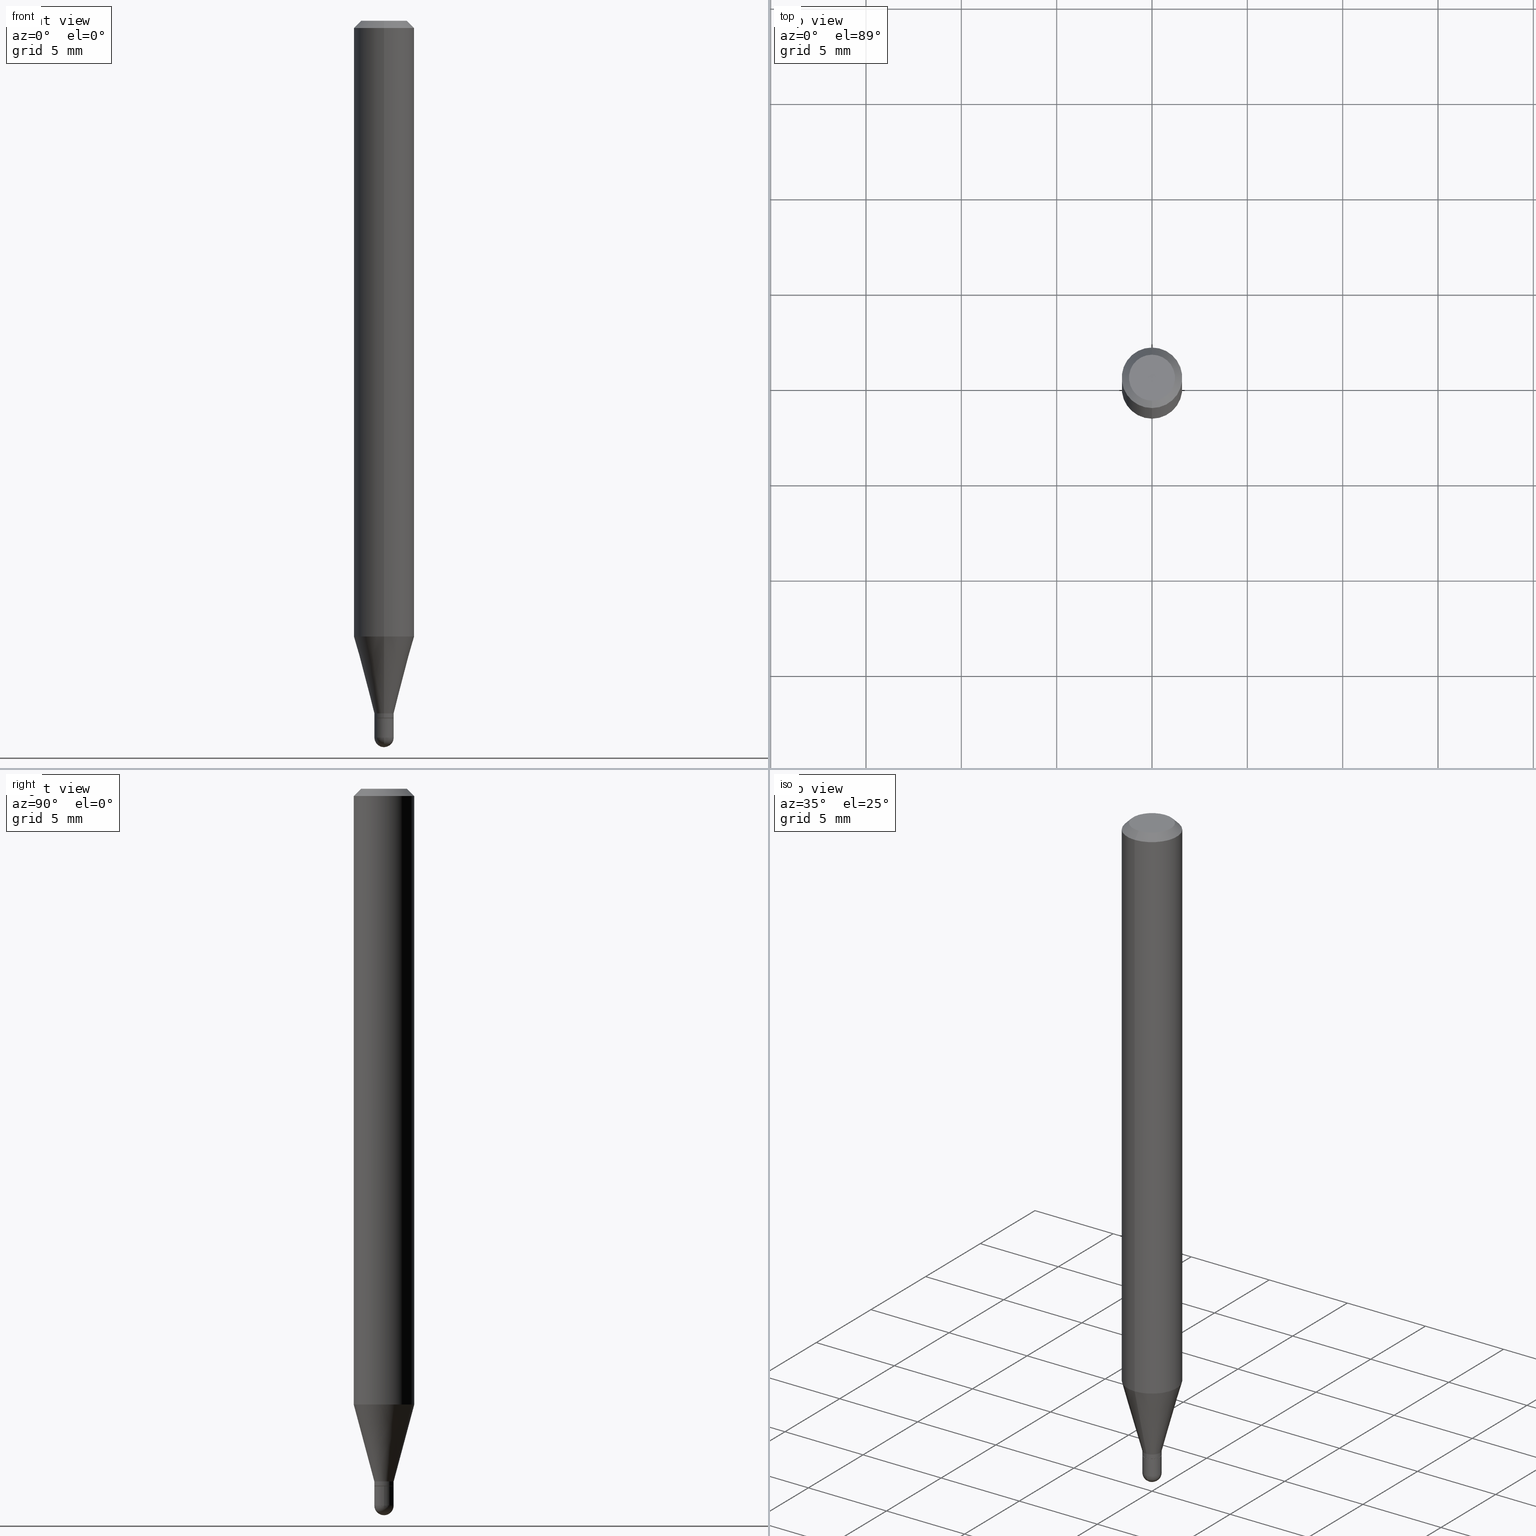
[diagram: canonical four-view strip — front | top / right | iso, engineering-drawing reading convention]
A machine part, canonical four-view strip (front | top / right | iso — engineering-drawing reading convention). The complete STEP part file that produces these views, byte-faithful:
ISO-10303-21;
HEADER;
FILE_DESCRIPTION (( 'STEP AP203' ),
    '1' );
FILE_NAME ('00775.STEP',
    '2024-03-07T18:18:02',
    ( '' ),
    ( '' ),
    'SwSTEP 2.0',
    'SolidWorks 2023',
    '' );
FILE_SCHEMA (( 'CONFIG_CONTROL_DESIGN' ));
ENDSEC;

DATA;
#1 = APPROVAL_ROLE ( '' ) ;
#2 = DIRECTION ( 'NONE',  ( -2.445468806185136597E-29, 3.491481338843145583E-15, 1.000000000000000000 ) ) ;
#3 = ADVANCED_FACE ( 'NONE', ( #186 ), #29, .T. ) ;
#4 = APPROVAL_ROLE ( '' ) ;
#5 = CARTESIAN_POINT ( 'NONE',  ( 3.617583500575643027E-29, -5.169841675086150023E-15, -1.479999999999999982 ) ) ;
#6 = CIRCLE ( 'NONE', #316, 0.01999999999999992409 ) ;
#7 = CALENDAR_DATE ( 2024, 7, 3 ) ;
#8 = CARTESIAN_POINT ( 'NONE',  ( 3.316907271900976096E-16, 0.04749999999999999362, -1.702750375905685625E-16 ) ) ;
#9 = APPROVAL ( #476, 'UNSPECIFIED' ) ;
#10 = DIRECTION ( 'NONE',  ( -4.851104656540964275E-15, -0.7071067811865500152, -0.7071067811865450192 ) ) ;
#11 = CC_DESIGN_PERSON_AND_ORGANIZATION_ASSIGNMENT ( #396, #470, ( #89 ) ) ;
#12 = CARTESIAN_POINT ( 'NONE',  ( 3.619293833154002365E-29, -5.167392381487854879E-15, -1.479999999999999982 ) ) ;
#13 = ORIENTED_EDGE ( 'NONE', *, *, #154, .F. ) ;
#14 = CIRCLE ( 'NONE', #508, 0.01999999999999992062 ) ;
#15 = CARTESIAN_POINT ( 'NONE',  ( 4.440892098500934804E-16, 0.06249999999999554523, -1.271387840678323444 ) ) ;
#16 = ORIENTED_EDGE ( 'NONE', *, *, #298, .F. ) ;
#17 = FACE_OUTER_BOUND ( 'NONE', #70, .T. ) ;
#18 = EDGE_CURVE ( 'NONE', #66, #390, #461, .T. ) ;
#19 = ORIENTED_EDGE ( 'NONE', *, *, #406, .T. ) ;
#20 = DIRECTION ( 'NONE',  ( -2.445483089663186682E-29, 3.491460884089612684E-15, 1.000000000000000000 ) ) ;
#21 = ORIENTED_EDGE ( 'NONE', *, *, #320, .F. ) ;
#22 = CIRCLE ( 'NONE', #472, 0.02000000000000000389 ) ;
#23 = CARTESIAN_POINT ( 'NONE',  ( 3.521495649114989180E-29, -5.027703673089042990E-15, -1.440000000000000169 ) ) ;
#24 = EDGE_LOOP ( 'NONE', ( #260, #34, #190, #54 ) ) ;
#25 = DIRECTION ( 'NONE',  ( -2.445483089663186682E-29, 3.491460884089612684E-15, 1.000000000000000000 ) ) ;
#26 = CARTESIAN_POINT ( 'NONE',  ( 0.000000000000000000, 0.000000000000000000, 0.000000000000000000 ) ) ;
#27 = CC_DESIGN_PERSON_AND_ORGANIZATION_ASSIGNMENT ( #85, #354, ( #230 ) ) ;
#28 = DIRECTION ( 'NONE',  ( -2.445483089663186682E-29, 3.491460884089612684E-15, 1.000000000000000000 ) ) ;
#29 = CYLINDRICAL_SURFACE ( 'NONE', #373, 0.02000000000000000042 ) ;
#30 = AXIS2_PLACEMENT_3D ( 'NONE', #364, #82, #239 ) ;
#31 = DIRECTION ( 'NONE',  ( -2.445483089663186682E-29, 3.491460884089612684E-15, 1.000000000000000000 ) ) ;
#32 = AXIS2_PLACEMENT_3D ( 'NONE', #300, #507, #426 ) ;
#33 = VERTEX_POINT ( 'NONE', #267 ) ;
#34 = ORIENTED_EDGE ( 'NONE', *, *, #395, .F. ) ;
#35 = ADVANCED_FACE ( 'NONE', ( #459 ), #350, .T. ) ;
#36 = FACE_OUTER_BOUND ( 'NONE', #134, .T. ) ;
#37 = ORIENTED_EDGE ( 'NONE', *, *, #504, .T. ) ;
#38 = APPROVAL_DATE_TIME ( #435, #9 ) ;
#39 = CONICAL_SURFACE ( 'NONE', #226, 0.06250000000000000000, 0.7853981633974483900 ) ;
#40 = LINE ( 'NONE', #284, #432 ) ;
#41 = EDGE_CURVE ( 'NONE', #132, #66, #305, .T. ) ;
#42 = CALENDAR_DATE ( 2024, 7, 3 ) ;
#43 = CARTESIAN_POINT ( 'NONE',  ( -4.364351673553912750E-16, -0.06250000000000005551, -0.01499999999999979128 ) ) ;
#44 = COORDINATED_UNIVERSAL_TIME_OFFSET ( 5, 0, .BEHIND. ) ;
#45 = DIRECTION ( 'NONE',  ( -1.000000000000000000, 6.982962677686265922E-15, -4.883557194083112340E-29 ) ) ;
#46 = DIRECTION ( 'NONE',  ( -6.982962677686266711E-15, -1.000000000000000000, 3.491460884089612684E-15 ) ) ;
#47 = AXIS2_PLACEMENT_3D ( 'NONE', #5, #125, #278 ) ;
#48 = ADVANCED_FACE ( 'NONE', ( #269 ), #455, .T. ) ;
#49 = PERSON_AND_ORGANIZATION ( #363, #509 ) ;
#50 = CARTESIAN_POINT ( 'NONE',  ( 4.440892098500938748E-16, 0.06249999999999995143, -0.01500000000000022669 ) ) ;
#51 = EDGE_CURVE ( 'NONE', #175, #66, #14, .T. ) ;
#52 = DIRECTION ( 'NONE',  ( -2.445483089663186682E-29, 3.491460884089612684E-15, 1.000000000000000000 ) ) ;
#53 = DIRECTION ( 'NONE',  ( 6.982962677686265922E-15, 1.000000000000000000, 0.000000000000000000 ) ) ;
#54 = ORIENTED_EDGE ( 'NONE', *, *, #320, .T. ) ;
#55 = AXIS2_PLACEMENT_3D ( 'NONE', #12, #133, #331 ) ;
#56 = CARTESIAN_POINT ( 'NONE',  ( 3.667348042988525507E-29, -5.238446655063865749E-15, -1.500000000000000222 ) ) ;
#57 = ORIENTED_EDGE ( 'NONE', *, *, #312, .T. ) ;
#58 = FACE_OUTER_BOUND ( 'NONE', #228, .T. ) ;
#59 = ORIENTED_EDGE ( 'NONE', *, *, #462, .T. ) ;
#60 = ADVANCED_BREP_SHAPE_REPRESENTATION ( '00775', ( #279, #437, #235 ), #122 ) ;
#61 = CARTESIAN_POINT ( 'NONE',  ( 3.617583500575643027E-29, -5.169841675086150023E-15, -1.479999999999999982 ) ) ;
#62 = ORIENTED_EDGE ( 'NONE', *, *, #67, .F. ) ;
#63 = CLOSED_SHELL ( 'NONE', ( #196, #158, #102, #497, #467, #429, #451, #35, #138, #353, #48, #489 ) ) ;
#64 = AXIS2_PLACEMENT_3D ( 'NONE', #511, #123, #271 ) ;
#65 = APPROVAL_PERSON_ORGANIZATION ( #275, #9, #87 ) ;
#66 = VERTEX_POINT ( 'NONE', #192 ) ;
#67 = EDGE_CURVE ( 'NONE', #390, #173, #347, .T. ) ;
#68 = CARTESIAN_POINT ( 'NONE',  ( 3.497040818218357490E-29, -4.992789064248145932E-15, -1.429999999999999938 ) ) ;
#69 = EDGE_LOOP ( 'NONE', ( #413, #422, #185, #272 ) ) ;
#70 = EDGE_LOOP ( 'NONE', ( #243, #57 ) ) ;
#71 = CIRCLE ( 'NONE', #129, 0.02000000000000000042 ) ;
#72 = DIRECTION ( 'NONE',  ( -6.982962677686265133E-15, -1.000000000000000000, 3.491460884089612289E-15 ) ) ;
#73 = AXIS2_PLACEMENT_3D ( 'NONE', #346, #224, #72 ) ;
#74 = ADVANCED_FACE ( 'NONE', ( #349 ), #309, .T. ) ;
#75 = EDGE_LOOP ( 'NONE', ( #294, #296, #493, #214 ) ) ;
#76 = DIRECTION ( 'NONE',  ( 0.000000000000000000, 0.000000000000000000, 1.000000000000000000 ) ) ;
#77 = VERTEX_POINT ( 'NONE', #156 ) ;
#78 = VERTEX_POINT ( 'NONE', #43 ) ;
#79 = EDGE_CURVE ( 'NONE', #377, #78, #242, .T. ) ;
#80 = APPROVAL_DATE_TIME ( #163, #104 ) ;
#81 = VECTOR ( 'NONE', #10, 39.37007874015748143 ) ;
#82 = DIRECTION ( 'NONE',  ( -2.445468806185136597E-29, 3.491481338843145583E-15, 1.000000000000000000 ) ) ;
#83 = EDGE_LOOP ( 'NONE', ( #288, #254, #299, #13 ) ) ;
#84 = COORDINATED_UNIVERSAL_TIME_OFFSET ( 5, 0, .BEHIND. ) ;
#85 = PERSON_AND_ORGANIZATION ( #363, #509 ) ;
#86 = DIRECTION ( 'NONE',  ( -4.937700262164674260E-15, -0.7071067811865632269, 0.7071067811865319186 ) ) ;
#87 = APPROVAL_ROLE ( '' ) ;
#88 = CARTESIAN_POINT ( 'NONE',  ( -1.396592535536897664E-16, -0.02000000000000491315, -1.429999999999999938 ) ) ;
#89 = PRODUCT_DEFINITION ( 'UNKNOWN', '', #250, #317 ) ;
#90 = VECTOR ( 'NONE', #485, 39.37007874015748143 ) ;
#91 = AXIS2_PLACEMENT_3D ( 'NONE', #108, #421, #227 ) ;
#92 = CARTESIAN_POINT ( 'NONE',  ( 1.396592535537616514E-16, 0.01999999999999485176, -1.479999999999999982 ) ) ;
#93 = LINE ( 'NONE', #452, #257 ) ;
#94 = ORIENTED_EDGE ( 'NONE', *, *, #504, .F. ) ;
#95 = EDGE_CURVE ( 'NONE', #447, #261, #499, .T. ) ;
#96 = DIRECTION ( 'NONE',  ( -2.445468806185136877E-29, 3.491481338843145188E-15, 1.000000000000000000 ) ) ;
#97 = VERTEX_POINT ( 'NONE', #167 ) ;
#98 = CIRCLE ( 'NONE', #384, 0.04749999999999999362 ) ;
#99 = DIRECTION ( 'NONE',  ( -6.982962677686265922E-15, -1.000000000000000000, 3.483106191921935554E-15 ) ) ;
#100 = ORIENTED_EDGE ( 'NONE', *, *, #301, .T. ) ;
#101 = DIRECTION ( 'NONE',  ( -2.445483089663186682E-29, 3.491460884089612684E-15, 1.000000000000000000 ) ) ;
#102 = ADVANCED_FACE ( 'NONE', ( #164 ), #39, .T. ) ;
#103 = ORIENTED_EDGE ( 'NONE', *, *, #285, .T. ) ;
#104 = APPROVAL ( #474, 'UNSPECIFIED' ) ;
#105 = EDGE_LOOP ( 'NONE', ( #488, #366, #416, #94 ) ) ;
#106 = AXIS2_PLACEMENT_3D ( 'NONE', #8, #438, #403 ) ;
#107 = CONICAL_SURFACE ( 'NONE', #241, 0.01999999999999992062, 0.2617993877991506846 ) ;
#108 = CARTESIAN_POINT ( 'NONE',  ( 3.497040818218357490E-29, -4.992789064248145932E-15, -1.429999999999999938 ) ) ;
#109 = DIRECTION ( 'NONE',  ( 2.445483089663186682E-29, -3.491460884089612684E-15, -1.000000000000000000 ) ) ;
#110 = CARTESIAN_POINT ( 'NONE',  ( 3.520272907570157456E-29, -5.025957942646998808E-15, -1.439500000000000224 ) ) ;
#111 = CARTESIAN_POINT ( 'NONE',  ( 1.421085471520194731E-16, 0.01999999999999992409, -6.982921768179198299E-17 ) ) ;
#112 = EDGE_CURVE ( 'NONE', #212, #132, #324, .T. ) ;
#113 = DIRECTION ( 'NONE',  ( -6.982962677686265133E-15, -1.000000000000000000, 0.000000000000000000 ) ) ;
#114 = CARTESIAN_POINT ( 'NONE',  ( 3.668224634494782440E-31, -5.237191326134422452E-17, -0.01500000000000000812 ) ) ;
#115 =( LENGTH_UNIT ( ) NAMED_UNIT ( * ) SI_UNIT ( $, .METRE. ) );
#116 = DIRECTION ( 'NONE',  ( -2.445483089663186682E-29, 3.491460884089612684E-15, 1.000000000000000000 ) ) ;
#117 = ORIENTED_EDGE ( 'NONE', *, *, #41, .T. ) ;
#118 = PLANE ( 'NONE',  #106 ) ;
#119 = EDGE_CURVE ( 'NONE', #327, #78, #200, .T. ) ;
#120 = APPROVAL_DATE_TIME ( #233, #415 ) ;
#121 = AXIS2_PLACEMENT_3D ( 'NONE', #23, #101, #130 ) ;
#122 =( GEOMETRIC_REPRESENTATION_CONTEXT ( 3 ) GLOBAL_UNCERTAINTY_ASSIGNED_CONTEXT ( ( #286 ) ) GLOBAL_UNIT_ASSIGNED_CONTEXT ( ( #387, #348, #191 ) ) REPRESENTATION_CONTEXT ( 'NONE', 'WORKASPACE' ) );
#123 = DIRECTION ( 'NONE',  ( -2.445483089663186682E-29, 3.491460884089612684E-15, 1.000000000000000000 ) ) ;
#124 = COORDINATED_UNIVERSAL_TIME_OFFSET ( 5, 0, .BEHIND. ) ;
#125 = DIRECTION ( 'NONE',  ( -1.000000000000000000, 6.982962677686265922E-15, -4.883557194083112340E-29 ) ) ;
#126 = APPROVAL_STATUS ( 'not_yet_approved' ) ;
#127 = DIRECTION ( 'NONE',  ( 6.982962677686265922E-15, 1.000000000000000000, -3.483106191921935554E-15 ) ) ;
#128 = DIRECTION ( 'NONE',  ( 5.024295867788190974E-15, 0.7071067811865681119, 0.7071067811865270336 ) ) ;
#129 = AXIS2_PLACEMENT_3D ( 'NONE', #253, #414, #246 ) ;
#130 = DIRECTION ( 'NONE',  ( -6.982962677686264344E-15, -1.000000000000000000, 0.000000000000000000 ) ) ;
#131 = EDGE_CURVE ( 'NONE', #78, #173, #146, .T. ) ;
#132 = VERTEX_POINT ( 'NONE', #319 ) ;
#133 = DIRECTION ( 'NONE',  ( -2.445468806185136597E-29, 3.491481338843145583E-15, 1.000000000000000000 ) ) ;
#134 = EDGE_LOOP ( 'NONE', ( #152, #370, #372, #445, #330 ) ) ;
#135 = CARTESIAN_POINT ( 'NONE',  ( 3.109157464782232884E-29, -4.439000914235523162E-15, -1.271387840678323222 ) ) ;
#136 = EDGE_LOOP ( 'NONE', ( #143, #100, #247, #498 ) ) ;
#137 = CIRCLE ( 'NONE', #121, 0.01949999999999999997 ) ;
#138 = ADVANCED_FACE ( 'NONE', ( #399 ), #118, .F. ) ;
#139 = DIRECTION ( 'NONE',  ( -2.445468806185136877E-29, 3.491481338843145188E-15, 1.000000000000000000 ) ) ;
#140 = EDGE_LOOP ( 'NONE', ( #453, #418, #303, #486 ) ) ;
#141 = EDGE_CURVE ( 'NONE', #306, #225, #40, .T. ) ;
#142 = DIRECTION ( 'NONE',  ( -2.445483089663186682E-29, 3.491460884089612684E-15, 1.000000000000000000 ) ) ;
#143 = ORIENTED_EDGE ( 'NONE', *, *, #112, .F. ) ;
#144 = FACE_OUTER_BOUND ( 'NONE', #468, .T. ) ;
#145 = EDGE_LOOP ( 'NONE', ( #332, #223, #454, #16, #419 ) ) ;
#146 = CIRCLE ( 'NONE', #64, 0.06250000000000000000 ) ;
#147 = CC_DESIGN_APPROVAL ( #415, ( #250 ) ) ;
#148 = DIRECTION ( 'NONE',  ( 6.982962677686265922E-15, 1.000000000000000000, -3.483106191921935554E-15 ) ) ;
#149 = DIRECTION ( 'NONE',  ( -2.445483089663186682E-29, 3.491460884089612684E-15, 1.000000000000000000 ) ) ;
#150 = CARTESIAN_POINT ( 'NONE',  ( 3.497040818218357490E-29, -4.992789064248145932E-15, -1.429999999999999938 ) ) ;
#151 = DIRECTION ( 'NONE',  ( -2.445483089663186682E-29, 3.491460884089612684E-15, 1.000000000000000000 ) ) ;
#152 = ORIENTED_EDGE ( 'NONE', *, *, #291, .F. ) ;
#153 = CONICAL_SURFACE ( 'NONE', #197, 0.01949999999999999997, 0.7853981633974739252 ) ;
#154 = EDGE_CURVE ( 'NONE', #382, #97, #211, .T. ) ;
#155 = CYLINDRICAL_SURFACE ( 'NONE', #220, 0.06250000000000000000 ) ;
#156 = CARTESIAN_POINT ( 'NONE',  ( -1.421085471519839497E-16, -0.02000000000000519071, -1.479999999999999982 ) ) ;
#157 = DATE_TIME_ROLE ( 'classification_date' ) ;
#158 = ADVANCED_FACE ( 'NONE', ( #475 ), #153, .T. ) ;
#159 = CARTESIAN_POINT ( 'NONE',  ( 0.000000000000000000, 0.000000000000000000, 0.000000000000000000 ) ) ;
#160 = APPLICATION_CONTEXT ( 'configuration controlled 3d designs of mechanical parts and assemblies' ) ;
#161 = COORDINATED_UNIVERSAL_TIME_OFFSET ( 5, 0, .BEHIND. ) ;
#162 = DIRECTION ( 'NONE',  ( -2.445483089663186682E-29, 3.491460884089612684E-15, 1.000000000000000000 ) ) ;
#163 = DATE_AND_TIME ( #7, #440 ) ;
#164 = FACE_OUTER_BOUND ( 'NONE', #75, .T. ) ;
#165 = SECURITY_CLASSIFICATION_LEVEL ( 'unclassified' ) ;
#166 = CARTESIAN_POINT ( 'NONE',  ( 4.364351673553919652E-16, 0.06249999999999995143, -0.01500000000000022669 ) ) ;
#167 = CARTESIAN_POINT ( 'NONE',  ( -0.02000000000000000389, -4.955454207558972206E-15, -1.479999999999999982 ) ) ;
#168 = CARTESIAN_POINT ( 'NONE',  ( 3.109157464782232884E-29, -4.439000914235523162E-15, -1.271387840678323222 ) ) ;
#169 = CIRCLE ( 'NONE', #240, 0.02000000000000003511 ) ;
#170 = AXIS2_PLACEMENT_3D ( 'NONE', #333, #449, #174 ) ;
#171 = EDGE_LOOP ( 'NONE', ( #195, #458, #218, #404 ) ) ;
#172 = DIRECTION ( 'NONE',  ( -2.445468806185136597E-29, 3.491481338843145583E-15, 1.000000000000000000 ) ) ;
#173 = VERTEX_POINT ( 'NONE', #50 ) ;
#174 = DIRECTION ( 'NONE',  ( -6.982962677686264344E-15, -1.000000000000000000, 0.000000000000000000 ) ) ;
#175 = VERTEX_POINT ( 'NONE', #88 ) ;
#176 = DIRECTION ( 'NONE',  ( -6.982962677686265133E-15, -1.000000000000000000, 0.000000000000000000 ) ) ;
#177 = CLOSED_SHELL ( 'NONE', ( #3, #74, #266, #207, #442 ) ) ;
#178 = ORIENTED_EDGE ( 'NONE', *, *, #301, .F. ) ;
#179 = VECTOR ( 'NONE', #96, 39.37007874015748143 ) ;
#180 = CIRCLE ( 'NONE', #308, 0.01999999999999992409 ) ;
#181 = EDGE_CURVE ( 'NONE', #377, #336, #490, .T. ) ;
#182 = CARTESIAN_POINT ( 'NONE',  ( -4.364351673553605587E-16, -0.06250000000000445477, -1.271387840678323000 ) ) ;
#183 = ORIENTED_EDGE ( 'NONE', *, *, #119, .T. ) ;
#184 = CYLINDRICAL_SURFACE ( 'NONE', #457, 0.06250000000000000000 ) ;
#185 = ORIENTED_EDGE ( 'NONE', *, *, #462, .F. ) ;
#186 = FACE_OUTER_BOUND ( 'NONE', #145, .T. ) ;
#187 = VECTOR ( 'NONE', #128, 39.37007874015748143 ) ;
#188 = SECURITY_CLASSIFICATION ( '', '', #165 ) ;
#189 = DIRECTION ( 'NONE',  ( -6.982962677686265922E-15, -1.000000000000000000, 3.491460884089612684E-15 ) ) ;
#190 = ORIENTED_EDGE ( 'NONE', *, *, #209, .T. ) ;
#191 =( NAMED_UNIT ( * ) SI_UNIT ( $, .STERADIAN. ) SOLID_ANGLE_UNIT ( ) );
#192 = CARTESIAN_POINT ( 'NONE',  ( 2.930988785010741768E-16, 0.01999999999999492462, -1.429999999999999938 ) ) ;
#193 = CC_DESIGN_DATE_AND_TIME_ASSIGNMENT ( #433, #157, ( #188 ) ) ;
#194 = DIRECTION ( 'NONE',  ( -6.982962677686265133E-15, -1.000000000000000000, 0.000000000000000000 ) ) ;
#195 = ORIENTED_EDGE ( 'NONE', *, *, #329, .T. ) ;
#196 = ADVANCED_FACE ( 'NONE', ( #199 ), #205, .T. ) ;
#197 = AXIS2_PLACEMENT_3D ( 'NONE', #441, #397, #234 ) ;
#198 = PERSON_AND_ORGANIZATION ( #363, #509 ) ;
#199 = FACE_OUTER_BOUND ( 'NONE', #484, .T. ) ;
#200 = LINE ( 'NONE', #206, #204 ) ;
#201 = APPLICATION_PROTOCOL_DEFINITION ( 'international standard', 'config_control_design', 1994, #443 ) ;
#202 = SPHERICAL_SURFACE ( 'NONE', #47, 0.02000000000000003511 ) ;
#203 = EDGE_CURVE ( 'NONE', #97, #77, #439, .T. ) ;
#204 = VECTOR ( 'NONE', #162, 39.37007874015748143 ) ;
#205 = CYLINDRICAL_SURFACE ( 'NONE', #342, 0.01999999999999992409 ) ;
#206 = CARTESIAN_POINT ( 'NONE',  ( -4.364351673553916201E-16, -0.06250000000000000000, 2.182163052556007927E-16 ) ) ;
#207 = ADVANCED_FACE ( 'NONE', ( #434 ), #202, .T. ) ;
#208 = DIRECTION ( 'NONE',  ( -2.445483089663186682E-29, 3.491460884089612684E-15, 1.000000000000000000 ) ) ;
#209 = EDGE_CURVE ( 'NONE', #336, #173, #238, .T. ) ;
#210 = FACE_OUTER_BOUND ( 'NONE', #251, .T. ) ;
#211 = CIRCLE ( 'NONE', #30, 0.02000000000000000389 ) ;
#212 = VERTEX_POINT ( 'NONE', #478 ) ;
#213 = CARTESIAN_POINT ( 'NONE',  ( -1.396592535536897664E-16, -0.02000000000000491315, -1.429999999999999938 ) ) ;
#214 = ORIENTED_EDGE ( 'NONE', *, *, #209, .F. ) ;
#215 = CARTESIAN_POINT ( 'NONE',  ( 3.497040818218357490E-29, -4.992789064248145932E-15, -1.429999999999999938 ) ) ;
#216 = EDGE_LOOP ( 'NONE', ( #221, #231 ) ) ;
#217 = CARTESIAN_POINT ( 'NONE',  ( -3.773273898774340269E-16, -0.04749999999999999362, 1.569831008016326844E-16 ) ) ;
#218 = ORIENTED_EDGE ( 'NONE', *, *, #131, .F. ) ;
#219 = AXIS2_PLACEMENT_3D ( 'NONE', #503, #505, #428 ) ;
#220 = AXIS2_PLACEMENT_3D ( 'NONE', #456, #28, #460 ) ;
#221 = ORIENTED_EDGE ( 'NONE', *, *, #395, .T. ) ;
#222 = DIRECTION ( 'NONE',  ( -6.982962677686265133E-15, -1.000000000000000000, 0.000000000000000000 ) ) ;
#223 = ORIENTED_EDGE ( 'NONE', *, *, #291, .T. ) ;
#224 = DIRECTION ( 'NONE',  ( -2.445483089663186682E-29, 3.491460884089612684E-15, 1.000000000000000000 ) ) ;
#225 = VERTEX_POINT ( 'NONE', #281 ) ;
#226 = AXIS2_PLACEMENT_3D ( 'NONE', #431, #355, #127 ) ;
#227 = DIRECTION ( 'NONE',  ( -6.982962677686265133E-15, -1.000000000000000000, 0.000000000000000000 ) ) ;
#228 = EDGE_LOOP ( 'NONE', ( #411, #37, #19, #495 ) ) ;
#229 = CARTESIAN_POINT ( 'NONE',  ( 0.02000000000000000042, -5.167392381487856456E-15, -1.440000000000000169 ) ) ;
#230 = PRODUCT ( '00775', '00775', '', ( #255 ) ) ;
#231 = ORIENTED_EDGE ( 'NONE', *, *, #181, .T. ) ;
#232 = EDGE_CURVE ( 'NONE', #306, #212, #137, .T. ) ;
#233 = DATE_AND_TIME ( #42, #386 ) ;
#234 = DIRECTION ( 'NONE',  ( -6.982962677686264344E-15, -1.000000000000000000, 0.000000000000000000 ) ) ;
#235 = AXIS2_PLACEMENT_3D ( 'NONE', #502, #76, #379 ) ;
#236 = COORDINATED_UNIVERSAL_TIME_OFFSET ( 5, 0, .BEHIND. ) ;
#237 = CARTESIAN_POINT ( 'NONE',  ( 1.385558334732547143E-16, 0.01949999999999496927, -1.440000000000000169 ) ) ;
#238 = LINE ( 'NONE', #166, #481 ) ;
#239 = DIRECTION ( 'NONE',  ( 1.000000000000000000, -6.982962677686282488E-15, 0.000000000000000000 ) ) ;
#240 = AXIS2_PLACEMENT_3D ( 'NONE', #61, #248, #53 ) ;
#241 = AXIS2_PLACEMENT_3D ( 'NONE', #215, #20, #176 ) ;
#242 = LINE ( 'NONE', #480, #81 ) ;
#243 = ORIENTED_EDGE ( 'NONE', *, *, #95, .T. ) ;
#244 = CARTESIAN_POINT ( 'NONE',  ( 2.167013776414310302E-46, -3.093885158157417221E-32, -8.861291192623908455E-18 ) ) ;
#245 = CC_DESIGN_DATE_AND_TIME_ASSIGNMENT ( #313, #318, ( #89 ) ) ;
#246 = DIRECTION ( 'NONE',  ( 1.000000000000000000, -6.982962677686284065E-15, 0.000000000000000000 ) ) ;
#247 = ORIENTED_EDGE ( 'NONE', *, *, #141, .T. ) ;
#248 = DIRECTION ( 'NONE',  ( 1.000000000000000000, -6.982962677686265922E-15, 4.883557194083112340E-29 ) ) ;
#249 = AXIS2_PLACEMENT_3D ( 'NONE', #405, #52, #99 ) ;
#250 = PRODUCT_DEFINITION_FORMATION_WITH_SPECIFIED_SOURCE ( 'ANY', '', #230, .NOT_KNOWN. ) ;
#251 = EDGE_LOOP ( 'NONE', ( #501, #178 ) ) ;
#252 = DIRECTION ( 'NONE',  ( -6.982962677686265922E-15, -1.000000000000000000, 4.370956789862821150E-15 ) ) ;
#253 = CARTESIAN_POINT ( 'NONE',  ( 3.521475080906597305E-29, -5.027733127934130649E-15, -1.440000000000000169 ) ) ;
#254 = ORIENTED_EDGE ( 'NONE', *, *, #479, .T. ) ;
#255 = MECHANICAL_CONTEXT ( 'NONE', #160, 'mechanical' ) ;
#256 = ORIENTED_EDGE ( 'NONE', *, *, #378, .F. ) ;
#257 = VECTOR ( 'NONE', #139, 39.37007874015748143 ) ;
#258 = EDGE_CURVE ( 'NONE', #77, #33, #22, .T. ) ;
#259 = CC_DESIGN_APPROVAL ( #104, ( #89 ) ) ;
#260 = ORIENTED_EDGE ( 'NONE', *, *, #79, .F. ) ;
#261 = VERTEX_POINT ( 'NONE', #482 ) ;
#262 = DIRECTION ( 'NONE',  ( -1.000000000000000000, 7.105427357601001070E-15, -4.926315508542082329E-29 ) ) ;
#263 = DIRECTION ( 'NONE',  ( -2.445483089663186682E-29, 3.491460884089612684E-15, 1.000000000000000000 ) ) ;
#264 = AXIS2_PLACEMENT_3D ( 'NONE', #314, #391, #46 ) ;
#265 = APPLICATION_PROTOCOL_DEFINITION ( 'international standard', 'config_control_design', 1994, #160 ) ;
#266 = ADVANCED_FACE ( 'NONE', ( #17 ), #297, .F. ) ;
#267 = CARTESIAN_POINT ( 'NONE',  ( 0.02000000000000000389, -5.237222008264718177E-15, -1.479999999999999982 ) ) ;
#268 = PERSON_AND_ORGANIZATION_ROLE ( 'creator' ) ;
#269 = FACE_OUTER_BOUND ( 'NONE', #136, .T. ) ;
#270 = CALENDAR_DATE ( 2024, 7, 3 ) ;
#271 = DIRECTION ( 'NONE',  ( -6.982962677686265922E-15, -1.000000000000000000, 3.483106191921935554E-15 ) ) ;
#272 = ORIENTED_EDGE ( 'NONE', *, *, #141, .F. ) ;
#273 = AXIS2_PLACEMENT_3D ( 'NONE', #276, #45, #358 ) ;
#274 = AXIS2_PLACEMENT_3D ( 'NONE', #339, #262, #304 ) ;
#275 = PERSON_AND_ORGANIZATION ( #363, #509 ) ;
#276 = CARTESIAN_POINT ( 'NONE',  ( 3.617583500575643027E-29, -5.169841675086150023E-15, -1.479999999999999982 ) ) ;
#277 = PERSON_AND_ORGANIZATION_ROLE ( 'classification_officer' ) ;
#278 = DIRECTION ( 'NONE',  ( 6.982962677686265922E-15, 1.000000000000000000, 0.000000000000000000 ) ) ;
#279 = MANIFOLD_SOLID_BREP ( 'Body-Move/Copy2[1]', #177 ) ;
#280 = PERSON_AND_ORGANIZATION_ROLE ( 'design_supplier' ) ;
#281 = CARTESIAN_POINT ( 'NONE',  ( -1.396592535536900376E-16, -0.02000000000000502071, -1.439500000000000224 ) ) ;
#282 = VECTOR ( 'NONE', #345, 39.37007874015748143 ) ;
#283 = VECTOR ( 'NONE', #116, 39.37007874015748143 ) ;
#284 = CARTESIAN_POINT ( 'NONE',  ( -1.361677722148469565E-16, -0.01950000000000502720, -1.440000000000000169 ) ) ;
#285 = EDGE_CURVE ( 'NONE', #390, #327, #393, .T. ) ;
#286 = UNCERTAINTY_MEASURE_WITH_UNIT (LENGTH_MEASURE( 1.000000000000000082E-05 ), #387, 'distance_accuracy_value', 'NONE');
#287 = CARTESIAN_POINT ( 'NONE',  ( 1.396592535537605421E-16, 0.01999999999999497319, -1.440000000000000169 ) ) ;
#288 = ORIENTED_EDGE ( 'NONE', *, *, #338, .F. ) ;
#289 = PLANE ( 'NONE',  #315 ) ;
#290 = EDGE_LOOP ( 'NONE', ( #62, #103, #183, #21 ) ) ;
#291 = EDGE_CURVE ( 'NONE', #97, #261, #93, .T. ) ;
#292 = LINE ( 'NONE', #446, #179 ) ;
#293 = CIRCLE ( 'NONE', #170, 0.01949999999999999997 ) ;
#294 = ORIENTED_EDGE ( 'NONE', *, *, #181, .F. ) ;
#295 = DIRECTION ( 'NONE',  ( -1.000000000000000000, 6.982962677686265922E-15, -4.876176775795935793E-29 ) ) ;
#296 = ORIENTED_EDGE ( 'NONE', *, *, #79, .T. ) ;
#297 = PLANE ( 'NONE',  #448 ) ;
#298 = EDGE_CURVE ( 'NONE', #33, #447, #292, .T. ) ;
#299 = ORIENTED_EDGE ( 'NONE', *, *, #203, .F. ) ;
#300 = CARTESIAN_POINT ( 'NONE',  ( 0.000000000000000000, 0.000000000000000000, 0.000000000000000000 ) ) ;
#301 = EDGE_CURVE ( 'NONE', #212, #306, #293, .T. ) ;
#302 = DIRECTION ( 'NONE',  ( 1.839019923739603076E-15, 0.2588190451025253469, 0.9659258262890670910 ) ) ;
#303 = ORIENTED_EDGE ( 'NONE', *, *, #420, .F. ) ;
#304 = DIRECTION ( 'NONE',  ( -7.105427357601000281E-15, -1.000000000000000000, 0.000000000000000000 ) ) ;
#305 = LINE ( 'NONE', #111, #282 ) ;
#306 = VERTEX_POINT ( 'NONE', #337 ) ;
#307 = VECTOR ( 'NONE', #302, 39.37007874015748143 ) ;
#308 = AXIS2_PLACEMENT_3D ( 'NONE', #423, #151, #222 ) ;
#309 = SPHERICAL_SURFACE ( 'NONE', #273, 0.02000000000000003511 ) ;
#310 = PERSON_AND_ORGANIZATION ( #363, #509 ) ;
#311 = DIRECTION ( 'NONE',  ( -2.445483089663186682E-29, 3.491460884089612684E-15, 1.000000000000000000 ) ) ;
#312 = EDGE_CURVE ( 'NONE', #261, #447, #71, .T. ) ;
#313 = DATE_AND_TIME ( #398, #409 ) ;
#314 = CARTESIAN_POINT ( 'NONE',  ( 2.167013776414310302E-46, -3.093885158157417221E-32, -8.861291192623908455E-18 ) ) ;
#315 = AXIS2_PLACEMENT_3D ( 'NONE', #410, #326, #374 ) ;
#316 = AXIS2_PLACEMENT_3D ( 'NONE', #110, #25, #194 ) ;
#317 = DESIGN_CONTEXT ( 'detailed design', #443, 'design' ) ;
#318 = DATE_TIME_ROLE ( 'creation_date' ) ;
#319 = CARTESIAN_POINT ( 'NONE',  ( 1.421085471520541830E-16, 0.01999999999999482747, -1.439500000000000224 ) ) ;
#320 = EDGE_CURVE ( 'NONE', #173, #78, #464, .T. ) ;
#321 = PERSON_AND_ORGANIZATION ( #363, #509 ) ;
#322 = DIRECTION ( 'NONE',  ( 4.937700262164548042E-15, 0.7071067811865451302, -0.7071067811865499042 ) ) ;
#323 = CC_DESIGN_PERSON_AND_ORGANIZATION_ASSIGNMENT ( #310, #268, ( #250 ) ) ;
#324 = LINE ( 'NONE', #237, #187 ) ;
#325 = AXIS2_PLACEMENT_3D ( 'NONE', #114, #109, #148 ) ;
#326 = DIRECTION ( 'NONE',  ( -2.445483089663186401E-29, 3.491460884089612684E-15, 1.000000000000000000 ) ) ;
#327 = VERTEX_POINT ( 'NONE', #182 ) ;
#328 = LINE ( 'NONE', #213, #90 ) ;
#329 = EDGE_CURVE ( 'NONE', #327, #390, #359, .T. ) ;
#330 = ORIENTED_EDGE ( 'NONE', *, *, #312, .F. ) ;
#331 = DIRECTION ( 'NONE',  ( 1.000000000000000000, -6.982962677686282488E-15, 0.000000000000000000 ) ) ;
#332 = ORIENTED_EDGE ( 'NONE', *, *, #154, .T. ) ;
#333 = CARTESIAN_POINT ( 'NONE',  ( 3.521495649114989180E-29, -5.027703673089042990E-15, -1.440000000000000169 ) ) ;
#334 = AXIS2_PLACEMENT_3D ( 'NONE', #356, #436, #400 ) ;
#335 = CIRCLE ( 'NONE', #274, 0.02000000000000003511 ) ;
#336 = VERTEX_POINT ( 'NONE', #407 ) ;
#337 = CARTESIAN_POINT ( 'NONE',  ( -1.361677722148469565E-16, -0.01950000000000502720, -1.440000000000000169 ) ) ;
#338 = EDGE_CURVE ( 'NONE', #368, #382, #169, .T. ) ;
#339 = CARTESIAN_POINT ( 'NONE',  ( 3.617583500575643027E-29, -5.169841675086150023E-15, -1.479999999999999982 ) ) ;
#340 = ORIENTED_EDGE ( 'NONE', *, *, #329, .F. ) ;
#341 = LENGTH_MEASURE_WITH_UNIT ( LENGTH_MEASURE( 0.02539999999999999897 ), #115 );
#342 = AXIS2_PLACEMENT_3D ( 'NONE', #159, #311, #361 ) ;
#343 = DIRECTION ( 'NONE',  ( -2.445468806185136597E-29, 3.491481338843145583E-15, 1.000000000000000000 ) ) ;
#344 = CONICAL_SURFACE ( 'NONE', #401, 0.01999999999999992062, 0.2617993877991506846 ) ;
#345 = DIRECTION ( 'NONE',  ( -2.445483089663186682E-29, 3.491460884089612684E-15, 1.000000000000000000 ) ) ;
#346 = CARTESIAN_POINT ( 'NONE',  ( 0.000000000000000000, 0.000000000000000000, 0.000000000000000000 ) ) ;
#347 = LINE ( 'NONE', #465, #283 ) ;
#348 =( NAMED_UNIT ( * ) PLANE_ANGLE_UNIT ( ) SI_UNIT ( $, .RADIAN. ) );
#349 = FACE_OUTER_BOUND ( 'NONE', #83, .T. ) ;
#350 = CONICAL_SURFACE ( 'NONE', #325, 0.06250000000000000000, 0.7853981633974483900 ) ;
#351 = AXIS2_PLACEMENT_3D ( 'NONE', #135, #444, #252 ) ;
#352 = LOCAL_TIME ( 13, 18, 2.000000000000000000, #84 ) ;
#353 = ADVANCED_FACE ( 'NONE', ( #210 ), #289, .F. ) ;
#354 = PERSON_AND_ORGANIZATION_ROLE ( 'design_owner' ) ;
#355 = DIRECTION ( 'NONE',  ( 2.445483089663186682E-29, -3.491460884089612684E-15, -1.000000000000000000 ) ) ;
#356 = CARTESIAN_POINT ( 'NONE',  ( 3.521475080906597305E-29, -5.027733127934130649E-15, -1.440000000000000169 ) ) ;
#357 = SHAPE_DEFINITION_REPRESENTATION ( #512, #60 ) ;
#358 = DIRECTION ( 'NONE',  ( 6.982962677686265922E-15, 1.000000000000000000, 0.000000000000000000 ) ) ;
#359 = CIRCLE ( 'NONE', #424, 0.06250000000000000000 ) ;
#360 = LOCAL_TIME ( 13, 18, 2.000000000000000000, #236 ) ;
#361 = DIRECTION ( 'NONE',  ( -6.982962677686265133E-15, -1.000000000000000000, 3.491460884089612289E-15 ) ) ;
#362 = CC_DESIGN_PERSON_AND_ORGANIZATION_ASSIGNMENT ( #198, #280, ( #250 ) ) ;
#363 = PERSON ( 'UNSPECIFIED', 'UNSPECIFIED', 'UNSPECIFIED', ('UNSPECIFIED'), ('UNSPECIFIED'), ('UNSPECIFIED') ) ;
#364 = CARTESIAN_POINT ( 'NONE',  ( 3.619293833154002365E-29, -5.167392381487854879E-15, -1.479999999999999982 ) ) ;
#365 = DIRECTION ( 'NONE',  ( -2.445483089663186682E-29, 3.491460884089612684E-15, 1.000000000000000000 ) ) ;
#366 = ORIENTED_EDGE ( 'NONE', *, *, #483, .T. ) ;
#367 = LINE ( 'NONE', #494, #417 ) ;
#368 = VERTEX_POINT ( 'NONE', #56 ) ;
#369 = CARTESIAN_POINT ( 'NONE',  ( 3.619293833154002365E-29, -5.167392381487854879E-15, -1.479999999999999982 ) ) ;
#370 = ORIENTED_EDGE ( 'NONE', *, *, #203, .T. ) ;
#371 = DIRECTION ( 'NONE',  ( 2.438088387897960049E-29, -3.491481338843145188E-15, -1.000000000000000000 ) ) ;
#372 = ORIENTED_EDGE ( 'NONE', *, *, #258, .T. ) ;
#373 = AXIS2_PLACEMENT_3D ( 'NONE', #26, #343, #388 ) ;
#374 = DIRECTION ( 'NONE',  ( -6.982962677686265922E-15, -1.000000000000000000, 3.491460884089612684E-15 ) ) ;
#375 = CIRCLE ( 'NONE', #55, 0.02000000000000000389 ) ;
#376 = APPROVAL_PERSON_ORGANIZATION ( #402, #104, #4 ) ;
#377 = VERTEX_POINT ( 'NONE', #217 ) ;
#378 = EDGE_CURVE ( 'NONE', #225, #175, #367, .T. ) ;
#379 = DIRECTION ( 'NONE',  ( 1.000000000000000000, 0.000000000000000000, 0.000000000000000000 ) ) ;
#380 = ORIENTED_EDGE ( 'NONE', *, *, #51, .T. ) ;
#381 = CYLINDRICAL_SURFACE ( 'NONE', #73, 0.01999999999999992409 ) ;
#382 = VERTEX_POINT ( 'NONE', #92 ) ;
#383 = FACE_OUTER_BOUND ( 'NONE', #290, .T. ) ;
#384 = AXIS2_PLACEMENT_3D ( 'NONE', #244, #365, #412 ) ;
#385 = CARTESIAN_POINT ( 'NONE',  ( 1.421085471520544049E-16, 0.01999999999999492462, -1.429999999999999938 ) ) ;
#386 = LOCAL_TIME ( 13, 18, 2.000000000000000000, #161 ) ;
#387 =( CONVERSION_BASED_UNIT ( 'INCH', #341 ) LENGTH_UNIT ( ) NAMED_UNIT ( #477 ) );
#388 = DIRECTION ( 'NONE',  ( 1.000000000000000000, -6.982962677686265922E-15, 4.876176775795935793E-29 ) ) ;
#389 = CARTESIAN_POINT ( 'NONE',  ( 0.000000000000000000, 0.000000000000000000, 0.000000000000000000 ) ) ;
#390 = VERTEX_POINT ( 'NONE', #15 ) ;
#391 = DIRECTION ( 'NONE',  ( -2.445483089663186682E-29, 3.491460884089612684E-15, 1.000000000000000000 ) ) ;
#392 = AXIS2_PLACEMENT_3D ( 'NONE', #469, #2, #471 ) ;
#393 = CIRCLE ( 'NONE', #351, 0.06250000000000000000 ) ;
#394 = APPROVAL_PERSON_ORGANIZATION ( #49, #415, #1 ) ;
#395 = EDGE_CURVE ( 'NONE', #336, #377, #98, .T. ) ;
#396 = PERSON_AND_ORGANIZATION ( #363, #509 ) ;
#397 = DIRECTION ( 'NONE',  ( -2.445483089663186682E-29, 3.491460884089612684E-15, 1.000000000000000000 ) ) ;
#398 = CALENDAR_DATE ( 2024, 7, 3 ) ;
#399 = FACE_OUTER_BOUND ( 'NONE', #216, .T. ) ;
#400 = DIRECTION ( 'NONE',  ( 1.000000000000000000, -6.982962677686284065E-15, 0.000000000000000000 ) ) ;
#401 = AXIS2_PLACEMENT_3D ( 'NONE', #68, #149, #113 ) ;
#402 = PERSON_AND_ORGANIZATION ( #363, #509 ) ;
#403 = DIRECTION ( 'NONE',  ( 6.982962677686265922E-15, 1.000000000000000000, -3.491460884089612684E-15 ) ) ;
#404 = ORIENTED_EDGE ( 'NONE', *, *, #119, .F. ) ;
#405 = CARTESIAN_POINT ( 'NONE',  ( 3.668224634494782440E-31, -5.237191326134422452E-17, -0.01500000000000000812 ) ) ;
#406 = EDGE_CURVE ( 'NONE', #175, #327, #328, .T. ) ;
#407 = CARTESIAN_POINT ( 'NONE',  ( 3.840629472727447874E-16, 0.04749999999999999362, -1.747056831868805136E-16 ) ) ;
#408 = ORIENTED_EDGE ( 'NONE', *, *, #51, .F. ) ;
#409 = LOCAL_TIME ( 13, 18, 2.000000000000000000, #44 ) ;
#410 = CARTESIAN_POINT ( 'NONE',  ( 3.521495649114989180E-29, -5.027703673089042990E-15, -1.440000000000000169 ) ) ;
#411 = ORIENTED_EDGE ( 'NONE', *, *, #18, .F. ) ;
#412 = DIRECTION ( 'NONE',  ( -6.982962677686266711E-15, -1.000000000000000000, 3.491460884089612684E-15 ) ) ;
#413 = ORIENTED_EDGE ( 'NONE', *, *, #232, .T. ) ;
#414 = DIRECTION ( 'NONE',  ( -2.445468806185136597E-29, 3.491481338843145583E-15, 1.000000000000000000 ) ) ;
#415 = APPROVAL ( #126, 'UNSPECIFIED' ) ;
#416 = ORIENTED_EDGE ( 'NONE', *, *, #378, .T. ) ;
#417 = VECTOR ( 'NONE', #142, 39.37007874015748143 ) ;
#418 = ORIENTED_EDGE ( 'NONE', *, *, #338, .T. ) ;
#419 = ORIENTED_EDGE ( 'NONE', *, *, #420, .T. ) ;
#420 = EDGE_CURVE ( 'NONE', #33, #382, #375, .T. ) ;
#421 = DIRECTION ( 'NONE',  ( -2.445483089663186682E-29, 3.491460884089612684E-15, 1.000000000000000000 ) ) ;
#422 = ORIENTED_EDGE ( 'NONE', *, *, #112, .T. ) ;
#423 = CARTESIAN_POINT ( 'NONE',  ( 3.520272907570157456E-29, -5.025957942646998808E-15, -1.439500000000000224 ) ) ;
#424 = AXIS2_PLACEMENT_3D ( 'NONE', #168, #208, #492 ) ;
#425 = DIRECTION ( 'NONE',  ( -6.982962677686265133E-15, -1.000000000000000000, 0.000000000000000000 ) ) ;
#426 = DIRECTION ( 'NONE',  ( 1.000000000000000000, -6.982962677686265922E-15, 4.876176775795935793E-29 ) ) ;
#427 = ORIENTED_EDGE ( 'NONE', *, *, #406, .F. ) ;
#428 = DIRECTION ( 'NONE',  ( -6.982962677686264344E-15, -1.000000000000000000, 0.000000000000000000 ) ) ;
#429 = ADVANCED_FACE ( 'NONE', ( #58 ), #107, .T. ) ;
#430 = CALENDAR_DATE ( 2024, 7, 3 ) ;
#431 = CARTESIAN_POINT ( 'NONE',  ( 3.668224634494782440E-31, -5.237191326134422452E-17, -0.01500000000000000812 ) ) ;
#432 = VECTOR ( 'NONE', #86, 39.37007874015748143 ) ;
#433 = DATE_AND_TIME ( #430, #360 ) ;
#434 = FACE_OUTER_BOUND ( 'NONE', #140, .T. ) ;
#435 = DATE_AND_TIME ( #270, #352 ) ;
#436 = DIRECTION ( 'NONE',  ( -2.445468806185136597E-29, 3.491481338843145583E-15, 1.000000000000000000 ) ) ;
#437 = MANIFOLD_SOLID_BREP ( 'Body-Move/Copy2[2]', #63 ) ;
#438 = DIRECTION ( 'NONE',  ( 2.445483089663186401E-29, -3.491460884089612684E-15, -1.000000000000000000 ) ) ;
#439 = CIRCLE ( 'NONE', #392, 0.02000000000000000389 ) ;
#440 = LOCAL_TIME ( 13, 18, 2.000000000000000000, #124 ) ;
#441 = CARTESIAN_POINT ( 'NONE',  ( 3.521495649114989180E-29, -5.027703673089042990E-15, -1.440000000000000169 ) ) ;
#442 = ADVANCED_FACE ( 'NONE', ( #36 ), #463, .T. ) ;
#443 = APPLICATION_CONTEXT ( 'configuration controlled 3d designs of mechanical parts and assemblies' ) ;
#444 = DIRECTION ( 'NONE',  ( -2.445483089663186682E-29, 3.491460884089612684E-15, 1.000000000000000000 ) ) ;
#445 = ORIENTED_EDGE ( 'NONE', *, *, #298, .T. ) ;
#446 = CARTESIAN_POINT ( 'NONE',  ( 0.02000000000000000042, -1.396592535537253145E-16, 9.752353551591871936E-31 ) ) ;
#447 = VERTEX_POINT ( 'NONE', #229 ) ;
#448 = AXIS2_PLACEMENT_3D ( 'NONE', #287, #371, #295 ) ;
#449 = DIRECTION ( 'NONE',  ( -2.445483089663186682E-29, 3.491460884089612684E-15, 1.000000000000000000 ) ) ;
#450 = ORIENTED_EDGE ( 'NONE', *, *, #18, .T. ) ;
#451 = ADVANCED_FACE ( 'NONE', ( #383 ), #184, .T. ) ;
#452 = CARTESIAN_POINT ( 'NONE',  ( -0.02000000000000000042, 1.421085471520200401E-16, -9.837870180509812545E-31 ) ) ;
#453 = ORIENTED_EDGE ( 'NONE', *, *, #479, .F. ) ;
#454 = ORIENTED_EDGE ( 'NONE', *, *, #95, .F. ) ;
#455 = CONICAL_SURFACE ( 'NONE', #219, 0.01949999999999999997, 0.7853981633974739252 ) ;
#456 = CARTESIAN_POINT ( 'NONE',  ( 0.000000000000000000, 0.000000000000000000, 0.000000000000000000 ) ) ;
#457 = AXIS2_PLACEMENT_3D ( 'NONE', #389, #31, #189 ) ;
#458 = ORIENTED_EDGE ( 'NONE', *, *, #67, .T. ) ;
#459 = FACE_OUTER_BOUND ( 'NONE', #24, .T. ) ;
#460 = DIRECTION ( 'NONE',  ( -6.982962677686265922E-15, -1.000000000000000000, 3.491460884089612684E-15 ) ) ;
#461 = LINE ( 'NONE', #385, #307 ) ;
#462 = EDGE_CURVE ( 'NONE', #225, #132, #6, .T. ) ;
#463 = CYLINDRICAL_SURFACE ( 'NONE', #32, 0.02000000000000000042 ) ;
#464 = CIRCLE ( 'NONE', #249, 0.06250000000000000000 ) ;
#465 = CARTESIAN_POINT ( 'NONE',  ( 4.440892098500625669E-16, 0.06250000000000000000, -2.182163052556007927E-16 ) ) ;
#466 = CC_DESIGN_SECURITY_CLASSIFICATION ( #188, ( #250 ) ) ;
#467 = ADVANCED_FACE ( 'NONE', ( #144 ), #344, .T. ) ;
#468 = EDGE_LOOP ( 'NONE', ( #380, #450, #340, #427 ) ) ;
#469 = CARTESIAN_POINT ( 'NONE',  ( 3.619293833154002365E-29, -5.167392381487854879E-15, -1.479999999999999982 ) ) ;
#470 = PERSON_AND_ORGANIZATION_ROLE ( 'creator' ) ;
#471 = DIRECTION ( 'NONE',  ( 1.000000000000000000, -6.982962677686282488E-15, 0.000000000000000000 ) ) ;
#472 = AXIS2_PLACEMENT_3D ( 'NONE', #369, #172, #487 ) ;
#473 = CIRCLE ( 'NONE', #91, 0.01999999999999992062 ) ;
#474 = APPROVAL_STATUS ( 'not_yet_approved' ) ;
#475 = FACE_OUTER_BOUND ( 'NONE', #69, .T. ) ;
#476 = APPROVAL_STATUS ( 'not_yet_approved' ) ;
#477 = DIMENSIONAL_EXPONENTS ( 1.000000000000000000, 0.000000000000000000, 0.000000000000000000, 0.000000000000000000, 0.000000000000000000, 0.000000000000000000, 0.000000000000000000 ) ;
#478 = CARTESIAN_POINT ( 'NONE',  ( 1.403321903126546705E-16, 0.01949999999999496927, -1.440000000000000169 ) ) ;
#479 = EDGE_CURVE ( 'NONE', #368, #77, #335, .T. ) ;
#480 = CARTESIAN_POINT ( 'NONE',  ( -4.287811248607203282E-16, -0.06250000000000005551, -0.01499999999999979128 ) ) ;
#481 = VECTOR ( 'NONE', #322, 39.37007874015748143 ) ;
#482 = CARTESIAN_POINT ( 'NONE',  ( -0.02000000000000000042, -4.955454207558972206E-15, -1.440000000000000169 ) ) ;
#483 = EDGE_CURVE ( 'NONE', #132, #225, #180, .T. ) ;
#484 = EDGE_LOOP ( 'NONE', ( #59, #117, #408, #256 ) ) ;
#485 = DIRECTION ( 'NONE',  ( -1.807323732225332900E-15, -0.2588190451025185745, 0.9659258262890689783 ) ) ;
#486 = ORIENTED_EDGE ( 'NONE', *, *, #258, .F. ) ;
#487 = DIRECTION ( 'NONE',  ( 1.000000000000000000, -6.982962677686282488E-15, 0.000000000000000000 ) ) ;
#488 = ORIENTED_EDGE ( 'NONE', *, *, #41, .F. ) ;
#489 = ADVANCED_FACE ( 'NONE', ( #496 ), #381, .T. ) ;
#490 = CIRCLE ( 'NONE', #264, 0.04749999999999999362 ) ;
#491 = CC_DESIGN_APPROVAL ( #9, ( #188 ) ) ;
#492 = DIRECTION ( 'NONE',  ( -6.982962677686265922E-15, -1.000000000000000000, 4.370956789862821150E-15 ) ) ;
#493 = ORIENTED_EDGE ( 'NONE', *, *, #131, .T. ) ;
#494 = CARTESIAN_POINT ( 'NONE',  ( -1.396592535537247721E-16, -0.01999999999999992409, 6.982921768179198299E-17 ) ) ;
#495 = ORIENTED_EDGE ( 'NONE', *, *, #285, .F. ) ;
#496 = FACE_OUTER_BOUND ( 'NONE', #105, .T. ) ;
#497 = ADVANCED_FACE ( 'NONE', ( #500 ), #155, .T. ) ;
#498 = ORIENTED_EDGE ( 'NONE', *, *, #483, .F. ) ;
#499 = CIRCLE ( 'NONE', #334, 0.02000000000000000042 ) ;
#500 = FACE_OUTER_BOUND ( 'NONE', #171, .T. ) ;
#501 = ORIENTED_EDGE ( 'NONE', *, *, #232, .F. ) ;
#502 = CARTESIAN_POINT ( 'NONE',  ( 0.000000000000000000, 0.000000000000000000, 0.000000000000000000 ) ) ;
#503 = CARTESIAN_POINT ( 'NONE',  ( 3.521495649114989180E-29, -5.027703673089042990E-15, -1.440000000000000169 ) ) ;
#504 = EDGE_CURVE ( 'NONE', #66, #175, #473, .T. ) ;
#505 = DIRECTION ( 'NONE',  ( -2.445483089663186682E-29, 3.491460884089612684E-15, 1.000000000000000000 ) ) ;
#506 = CC_DESIGN_PERSON_AND_ORGANIZATION_ASSIGNMENT ( #321, #277, ( #188 ) ) ;
#507 = DIRECTION ( 'NONE',  ( -2.445468806185136597E-29, 3.491481338843145583E-15, 1.000000000000000000 ) ) ;
#508 = AXIS2_PLACEMENT_3D ( 'NONE', #150, #263, #425 ) ;
#509 = ORGANIZATION ( 'UNSPECIFIED', 'UNSPECIFIED', '' ) ;
#510 = PRODUCT_RELATED_PRODUCT_CATEGORY ( 'detail', '', ( #230 ) ) ;
#511 = CARTESIAN_POINT ( 'NONE',  ( 3.668224634494782440E-31, -5.237191326134422452E-17, -0.01500000000000000812 ) ) ;
#512 = PRODUCT_DEFINITION_SHAPE ( 'NONE', 'NONE',  #89 ) ;
ENDSEC;
END-ISO-10303-21;
